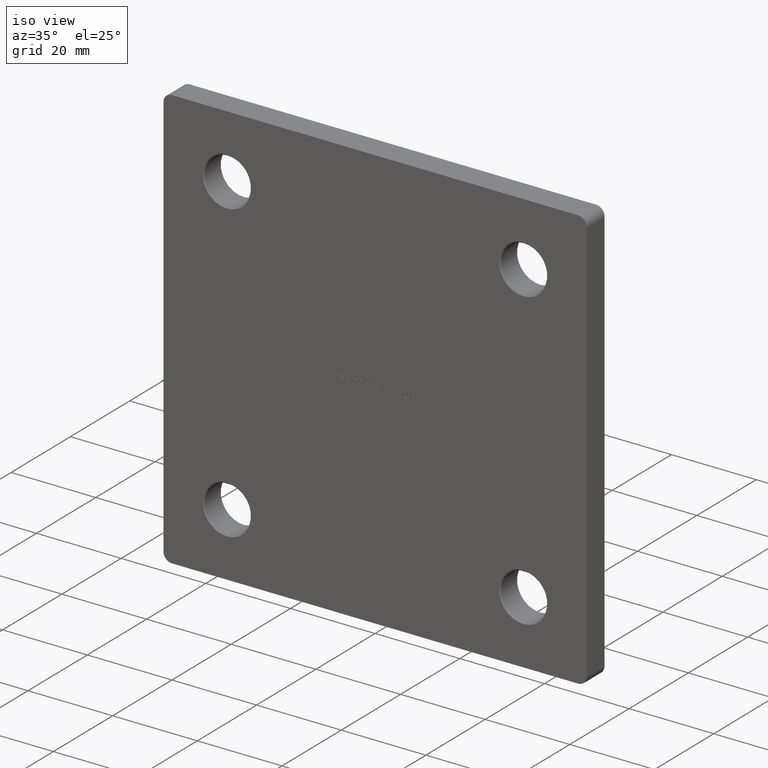
[diagram: clean part render]
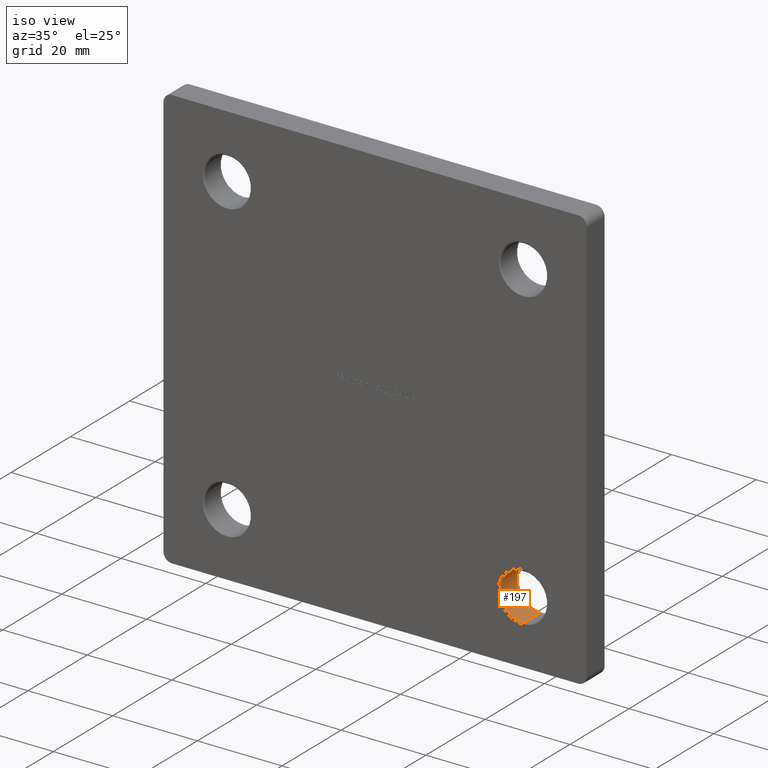
[diagram: same view with one face highlighted and labeled with its STEP entity id]
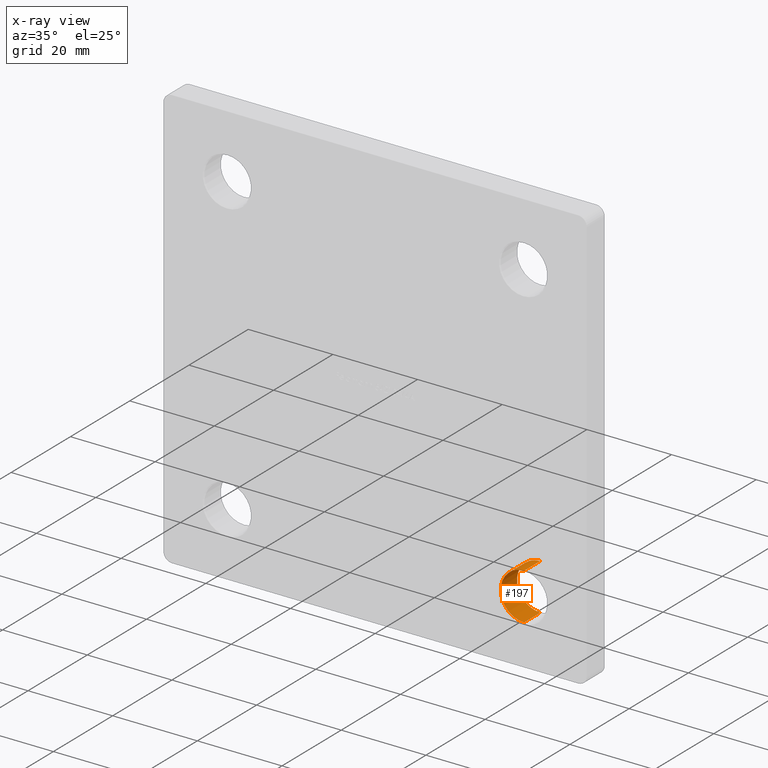
[diagram: x-ray of the same camera — body ghosted, the highlighted face saturated]
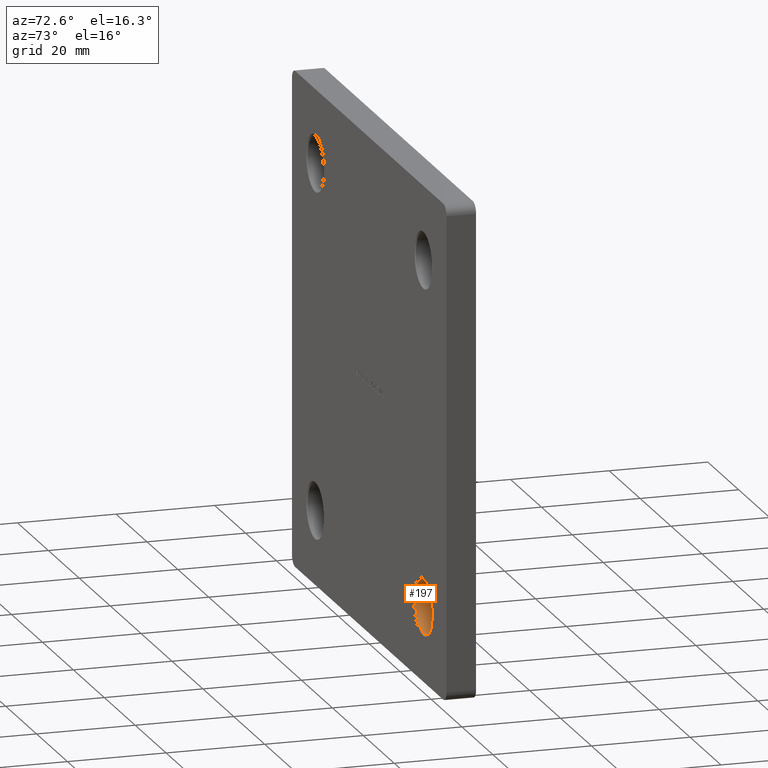
[diagram: same view with one face highlighted and labeled with its STEP entity id]
A machine part, iso view. The second image highlights one B-rep face of the part: STEP entity #197.
The next image is the same camera in x-ray: the body ghosted, the highlighted face saturated — about 0% of this face is hidden behind the body in this view.
A second angle (auxiliary view) of the same face is appended — the face is thin or edge-on in the first view.
In plain terms, the highlighted cylindrical surface (edge-blend (fillet) strip) has radius 5.5 mm, axis along (-0, 1, -0).
Its self-contained STEP definition (entity closure, byte-faithful):
#179 = VECTOR ( 'NONE', #2919, 1000.000000000000000 ) ;
#197 = ADVANCED_FACE ( 'NONE', ( #5331 ), #3099, .F. ) ;
#633 = DIRECTION ( 'NONE',  ( 0.000000000000000000, 0.000000000000000000, 1.000000000000000000 ) ) ;
#686 = EDGE_CURVE ( 'NONE', #6351, #3579, #6750, .T. ) ;
#1607 = DIRECTION ( 'NONE',  ( 0.000000000000000000, 1.000000000000000000, 0.000000000000000000 ) ) ;
#1708 = VERTEX_POINT ( 'NONE', #7225 ) ;
#2405 = EDGE_CURVE ( 'NONE', #3579, #4479, #9237, .T. ) ;
#2713 = AXIS2_PLACEMENT_3D ( 'NONE', #6745, #4048, #3048 ) ;
#2812 = CARTESIAN_POINT ( 'NONE',  ( 35.00000000000000000, 0.2499999999999872047, -40.50000000000000000 ) ) ;
#2919 = DIRECTION ( 'NONE',  ( -0.000000000000000000, 1.000000000000000000, -0.000000000000000000 ) ) ;
#3048 = DIRECTION ( 'NONE',  ( 0.000000000000000000, 0.000000000000000000, 1.000000000000000000 ) ) ;
#3099 = CYLINDRICAL_SURFACE ( 'NONE', #2713, 5.499999999999994671 ) ;
#3134 = ORIENTED_EDGE ( 'NONE', *, *, #2405, .T. ) ;
#3182 = CARTESIAN_POINT ( 'NONE',  ( 35.00000000000000000, 0.2499999999999872047, -35.00000000000000000 ) ) ;
#3579 = VERTEX_POINT ( 'NONE', #5854 ) ;
#4048 = DIRECTION ( 'NONE',  ( -0.000000000000000000, 1.000000000000000000, -0.000000000000000000 ) ) ;
#4138 = DIRECTION ( 'NONE',  ( 0.000000000000000000, 0.000000000000000000, 1.000000000000000000 ) ) ;
#4475 = AXIS2_PLACEMENT_3D ( 'NONE', #3182, #8662, #4138 ) ;
#4479 = VERTEX_POINT ( 'NONE', #4698 ) ;
#4698 = CARTESIAN_POINT ( 'NONE',  ( 35.00000000000000000, 5.749999999999999112, -29.50000000000000711 ) ) ;
#5022 = AXIS2_PLACEMENT_3D ( 'NONE', #6968, #1607, #633 ) ;
#5331 = FACE_OUTER_BOUND ( 'NONE', #8255, .T. ) ;
#5376 = LINE ( 'NONE', #7833, #9309 ) ;
#5854 = CARTESIAN_POINT ( 'NONE',  ( 35.00000000000000000, 5.749999999999999112, -40.50000000000000000 ) ) ;
#5860 = ORIENTED_EDGE ( 'NONE', *, *, #686, .T. ) ;
#6351 = VERTEX_POINT ( 'NONE', #2812 ) ;
#6439 = ORIENTED_EDGE ( 'NONE', *, *, #8987, .F. ) ;
#6745 = CARTESIAN_POINT ( 'NONE',  ( 35.00000000000000000, 0.000000000000000000, -35.00000000000000000 ) ) ;
#6750 = LINE ( 'NONE', #8394, #179 ) ;
#6968 = CARTESIAN_POINT ( 'NONE',  ( 35.00000000000000000, 5.749999999999999112, -35.00000000000000000 ) ) ;
#7006 = ORIENTED_EDGE ( 'NONE', *, *, #10795, .T. ) ;
#7225 = CARTESIAN_POINT ( 'NONE',  ( 35.00000000000000000, 0.2499999999999872047, -29.50000000000000711 ) ) ;
#7833 = CARTESIAN_POINT ( 'NONE',  ( 35.00000000000000000, 0.000000000000000000, -29.50000000000000711 ) ) ;
#8255 = EDGE_LOOP ( 'NONE', ( #7006, #5860, #3134, #6439 ) ) ;
#8394 = CARTESIAN_POINT ( 'NONE',  ( 35.00000000000000000, 0.000000000000000000, -40.50000000000000000 ) ) ;
#8662 = DIRECTION ( 'NONE',  ( -0.000000000000000000, -1.000000000000000000, -0.000000000000000000 ) ) ;
#8709 = CIRCLE ( 'NONE', #4475, 5.499999999999994671 ) ;
#8987 = EDGE_CURVE ( 'NONE', #1708, #4479, #5376, .T. ) ;
#9237 = CIRCLE ( 'NONE', #5022, 5.499999999999994671 ) ;
#9309 = VECTOR ( 'NONE', #9644, 1000.000000000000000 ) ;
#9644 = DIRECTION ( 'NONE',  ( -0.000000000000000000, 1.000000000000000000, -0.000000000000000000 ) ) ;
#10795 = EDGE_CURVE ( 'NONE', #1708, #6351, #8709, .T. ) ;